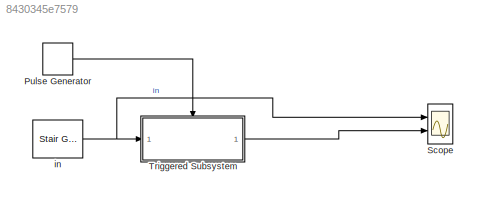
MODEL slx_8430345e7579
KIND model
CONFIG AbsTol = auto
CONFIG EnableMultiTasking = off
CONFIG FixedStep = 1e-3
CONFIG MaxStep = 1e-3
CONFIG MinStep = auto
CONFIG RelTol = 1e-3
CONFIG SampleTimeConstraint = Unconstrained
CONFIG Solver = FixedStepAuto
CONFIG SolverName = FixedStepAuto
CONFIG StartTime = 0.0
CONFIG StopTime = 20
BLOCK [DiscretePulseGenerator] Pulse Generator
  Period = 1
  PhaseDelay = 0.01
  Ports = [0, 1]
  PulseType = Time based
  PulseWidth = 25
BLOCK [Scope] Scope
  Floating = off
  NumInputPorts = 2
  Ports = [2]
  ScopeSpecificationString = Simulink.scopes.TimeScopeBlockCfg('CurrentConfiguration', extmgr.ConfigurationSet(extmgr.Configuration('Core','General UI',true,'DisplayFullSourceName',true),extmgr.Configuration('Core','Source UI',true),extmgr.Configuration('Sources','WiredSimulink',true),extmgr.Configuration('Visuals','Time Domain',true,'SerializedDisplays',{struct('MinYLimReal','-0.125','MaxYLimReal','1.125','YLabelReal','','Mi...<+2046ch>
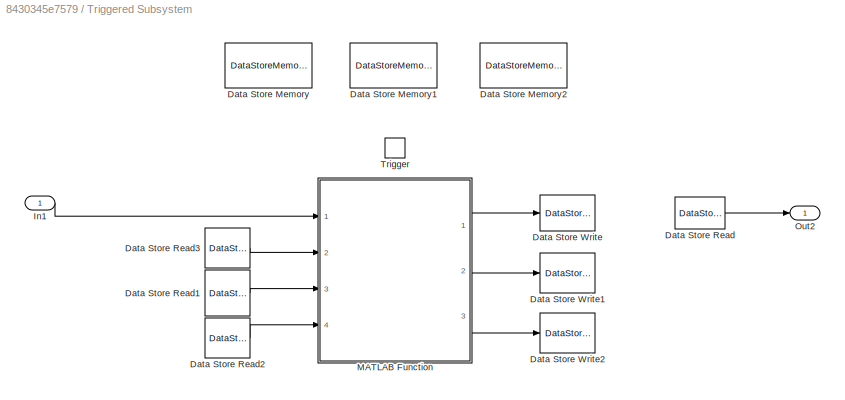
BLOCK [SubSystem] Triggered Subsystem
  Ports = [1, 1, 0, 1]
  RequestExecContextInheritance = off
  TreatAsAtomicUnit = on
BLOCK [DataStoreMemory] Triggered Subsystem/Data Store Memory
  DataStoreName = cnt_one
  ReadBeforeWriteMsg = warning
  ShowAdditionalParam = off
  WriteAfterReadMsg = warning
  WriteAfterWriteMsg = warning
BLOCK [DataStoreMemory] Triggered Subsystem/Data Store Memory1
  DataStoreName = cnt_zero
  ReadBeforeWriteMsg = warning
  ShowAdditionalParam = off
  WriteAfterReadMsg = warning
  WriteAfterWriteMsg = warning
BLOCK [DataStoreMemory] Triggered Subsystem/Data Store Memory2
  DataStoreName = out
  ReadBeforeWriteMsg = warning
  ShowAdditionalParam = off
  WriteAfterReadMsg = warning
  WriteAfterWriteMsg = warning
BLOCK [DataStoreRead] Triggered Subsystem/Data Store Read
  DataStoreName = out
  Ports = [0, 1]
BLOCK [DataStoreRead] Triggered Subsystem/Data Store Read1
  DataStoreName = cnt_one
  Ports = [0, 1]
BLOCK [DataStoreRead] Triggered Subsystem/Data Store Read2
  DataStoreName = cnt_zero
  Ports = [0, 1]
BLOCK [DataStoreRead] Triggered Subsystem/Data Store Read3
  DataStoreName = out
  Ports = [0, 1]
BLOCK [DataStoreWrite] Triggered Subsystem/Data Store Write
  DataStoreName = out
  Ports = [1]
BLOCK [DataStoreWrite] Triggered Subsystem/Data Store Write1
  DataStoreName = cnt_one
  Ports = [1]
BLOCK [DataStoreWrite] Triggered Subsystem/Data Store Write2
  DataStoreName = cnt_zero
  Ports = [1]
BLOCK [Inport] Triggered Subsystem/In1
  IconDisplay = Port number
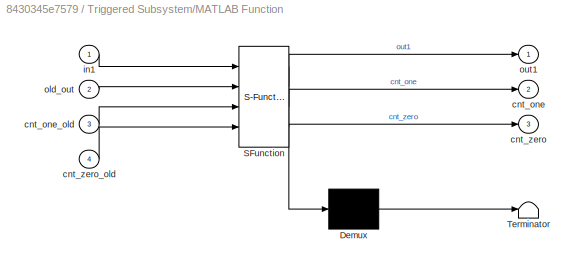
BLOCK [SubSystem] Triggered Subsystem/MATLAB Function
  ErrorFcn = Stateflow.Translate.translate
  PermitHierarchicalResolution = ExplicitOnly
  Ports = [4, 3]
  RequestExecContextInheritance = off
  SFBlockType = MATLAB Function
  TreatAsAtomicUnit = on
BLOCK [Demux] Triggered Subsystem/MATLAB Function/ Demux 
  Outputs = 1
  Ports = [1, 1]
BLOCK [S-Function] Triggered Subsystem/MATLAB Function/ SFunction 
  EnableBusSupport = on
  FunctionName = sf_sfun
  PortCounts = [4 4]
  Ports = [4, 4]
  SFcnIsStateOwnerBlock = off
  SFunctionDeploymentMode = off
  Tag = Stateflow S-Function task1 2
BLOCK [Terminator] Triggered Subsystem/MATLAB Function/ Terminator 
BLOCK [Outport] Triggered Subsystem/MATLAB Function/cnt_one
  IconDisplay = Port number
  Port = 2
BLOCK [Inport] Triggered Subsystem/MATLAB Function/cnt_one_old
  IconDisplay = Port number
  Port = 3
BLOCK [Outport] Triggered Subsystem/MATLAB Function/cnt_zero
  IconDisplay = Port number
  Port = 3
BLOCK [Inport] Triggered Subsystem/MATLAB Function/cnt_zero_old
  IconDisplay = Port number
  Port = 4
BLOCK [Inport] Triggered Subsystem/MATLAB Function/in1
  IconDisplay = Port number
BLOCK [Inport] Triggered Subsystem/MATLAB Function/old_out
  IconDisplay = Port number
  Port = 2
BLOCK [Outport] Triggered Subsystem/MATLAB Function/out1
  IconDisplay = Port number
BLOCK [Outport] Triggered Subsystem/Out2
  IconDisplay = Port number
BLOCK [TriggerPort] Triggered Subsystem/Trigger
  InitialTriggerSignalState = positive
  Ports = []
  StatesWhenEnabling = held
  VariantControl = Variant
BLOCK [Reference] in  REF=powerlib_meascontrol/Pulse & Signal
Generators/Stair
Generator
  Ports = [0, 1]
  SourceBlock = powerlib_meascontrol/Pulse & Signal\nGenerators/Stair\nGenerator
  SourceProductBaseCode = PS
  SourceProductName = Simscape Power Systems
  SourceType = Stair Generator
LINE Pulse Generator:1 -> Triggered Subsystem:trigger
LINE Triggered Subsystem/Data Store Read1:1 -> Triggered Subsystem/MATLAB Function:3
LINE Triggered Subsystem/Data Store Read2:1 -> Triggered Subsystem/MATLAB Function:4
LINE Triggered Subsystem/Data Store Read3:1 -> Triggered Subsystem/MATLAB Function:2
LINE Triggered Subsystem/Data Store Read:1 -> Triggered Subsystem/Out2:1
LINE Triggered Subsystem/In1:1 -> Triggered Subsystem/MATLAB Function:1
LINE Triggered Subsystem/MATLAB Function:1 -> Triggered Subsystem/Data Store Write:1
LINE Triggered Subsystem/MATLAB Function:2 -> Triggered Subsystem/Data Store Write1:1
LINE Triggered Subsystem/MATLAB Function:3 -> Triggered Subsystem/Data Store Write2:1
LINE Triggered Subsystem:1 -> Scope:2
NET in:1 -> Scope:1, Triggered Subsystem:1
note: NET lines group one-source signal fan-out (src -> all destinations, sorted); 1:1 wires keep LINE
CHART Triggered
Subsystem/MATLAB Function states=1 transitions=1
  STATE_LABEL 'eML_blk_kernel()'
  STATE_LABEL 'SCRIPT:\nfunction [out1, cnt_one, cnt_zero] = fcn(in1, old_out, cnt_one_old, cnt_zero_old)\nif in1 == 0 && cnt_one_old ==0 %Ждем 1, для начала серии\n  cnt_one = 0;\n  cnt_zero = 0;\n  out1 = old_out;    \nelseif in1 == 1 % Если на входе 1, счетчик единиц инкрементируем, остальнео без изменений\n  cnt_one = cnt_one_old + 1;\n  cnt_zero = 0;\n  out1 = old_out;\nelseif cnt_zero_old == 0 %Если на входе 0, но е...<+353ch>'
